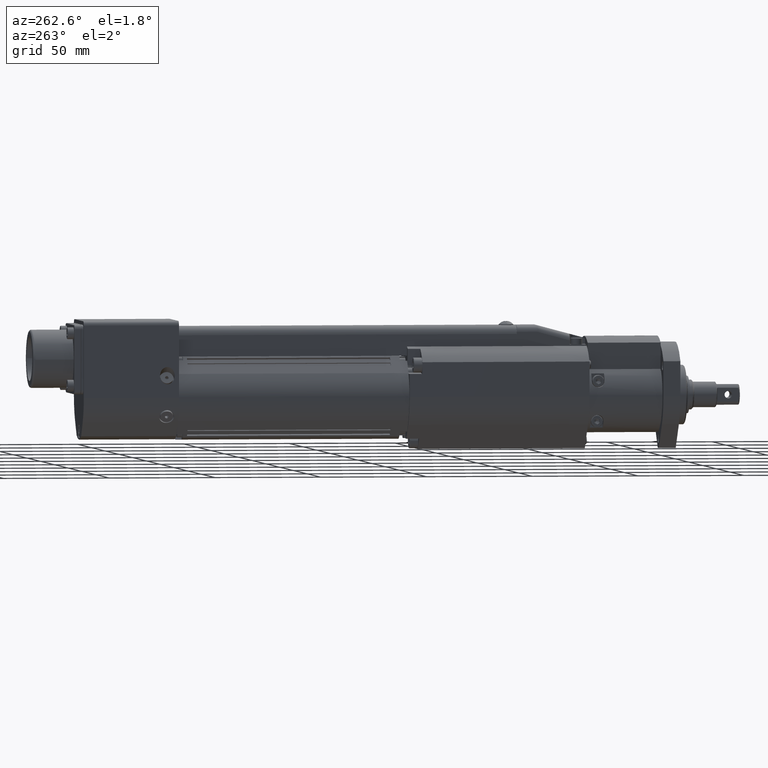
[diagram: clean part render]
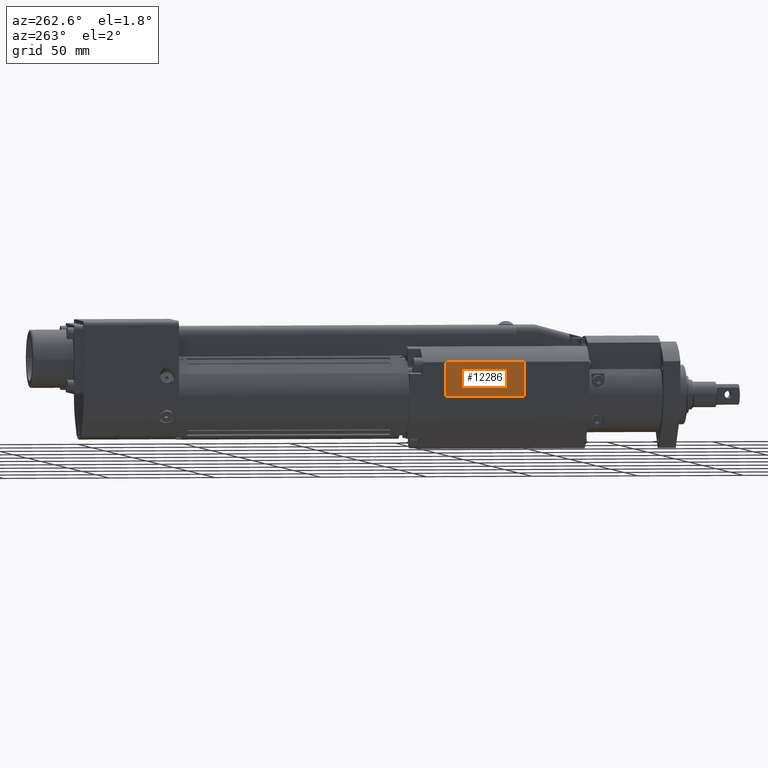
[diagram: same view with one face highlighted and labeled with its STEP entity id]
A machine part, auxiliary view. The second image highlights one B-rep face of the part: STEP entity #12286.
In plain terms, the highlighted planar face has unit normal (-1, -0, -0).
Its self-contained STEP definition (entity closure, byte-faithful):
#657=FACE_OUTER_BOUND('',#1376,.T.);
#1376=EDGE_LOOP('',(#8158,#8159,#8160,#8161));
#2767=LINE('',#19044,#3811);
#2780=LINE('',#19084,#3824);
#2781=LINE('',#19087,#3825);
#2782=LINE('',#19088,#3826);
#3811=VECTOR('',#14764,10.);
#3824=VECTOR('',#14807,10.);
#3825=VECTOR('',#14812,10.);
#3826=VECTOR('',#14813,10.);
#4933=VERTEX_POINT('',#19041);
#4934=VERTEX_POINT('',#19043);
#4945=VERTEX_POINT('',#19081);
#4946=VERTEX_POINT('',#19083);
#6144=EDGE_CURVE('',#4933,#4934,#2767,.T.);
#6165=EDGE_CURVE('',#4946,#4945,#2780,.T.);
#6167=EDGE_CURVE('',#4933,#4946,#2781,.T.);
#6168=EDGE_CURVE('',#4945,#4934,#2782,.T.);
#8158=ORIENTED_EDGE('',*,*,#6167,.T.);
#8159=ORIENTED_EDGE('',*,*,#6165,.T.);
#8160=ORIENTED_EDGE('',*,*,#6168,.T.);
#8161=ORIENTED_EDGE('',*,*,#6144,.F.);
#11098=PLANE('',#13134);
#12286=ADVANCED_FACE('',(#657),#11098,.T.);
#13134=AXIS2_PLACEMENT_3D('',#19086,#14810,#14811);
#14764=DIRECTION('',(5.65011212499312E-32,-1.,2.22044604925031E-16));
#14807=DIRECTION('',(5.65011212499312E-32,-1.,2.22044604925031E-16));
#14810=DIRECTION('center_axis',(-1.,-1.5833404618286E-28,-7.12818692960582E-13));
#14811=DIRECTION('ref_axis',(7.12818692960582E-13,-2.22044604925031E-16,
-1.));
#14812=DIRECTION('',(3.73477073482307E-13,-2.22044604925084E-16,-1.));
#14813=DIRECTION('',(-2.11400431104633E-15,2.22044604925031E-16,1.));
#19041=CARTESIAN_POINT('',(-18.9999999999989,111.,16.2480768092682));
#19043=CARTESIAN_POINT('',(-19.,74.,16.2480768092719));
#19044=CARTESIAN_POINT('',(-19.0000000000044,111.,16.2480768092619));
#19081=CARTESIAN_POINT('',(-19.,74.,-5.65973826743327E-14));
#19083=CARTESIAN_POINT('',(-18.9999999999928,111.,-3.67363562943838E-12));
#19084=CARTESIAN_POINT('',(-18.9999999999928,111.,-9.86893899934158E-12));
#19086=CARTESIAN_POINT('Origin',(-19.0000000000044,111.,16.2480768092619));
#19087=CARTESIAN_POINT('',(-18.9999999999989,111.,16.2480768092682));
#19088=CARTESIAN_POINT('',(-19.,74.,8.1240384046359));